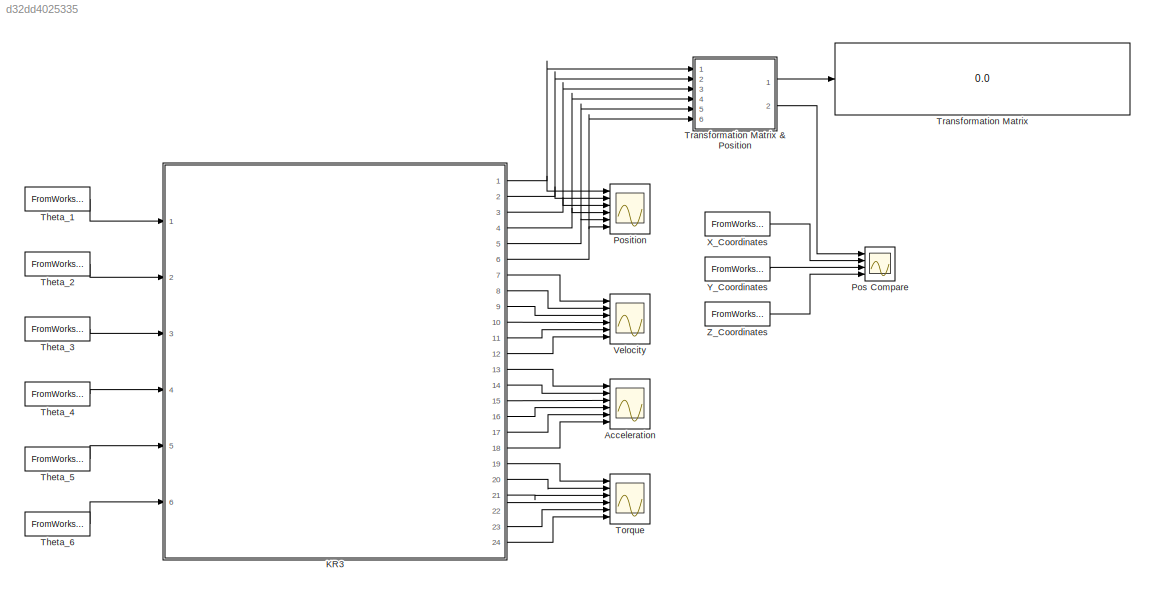
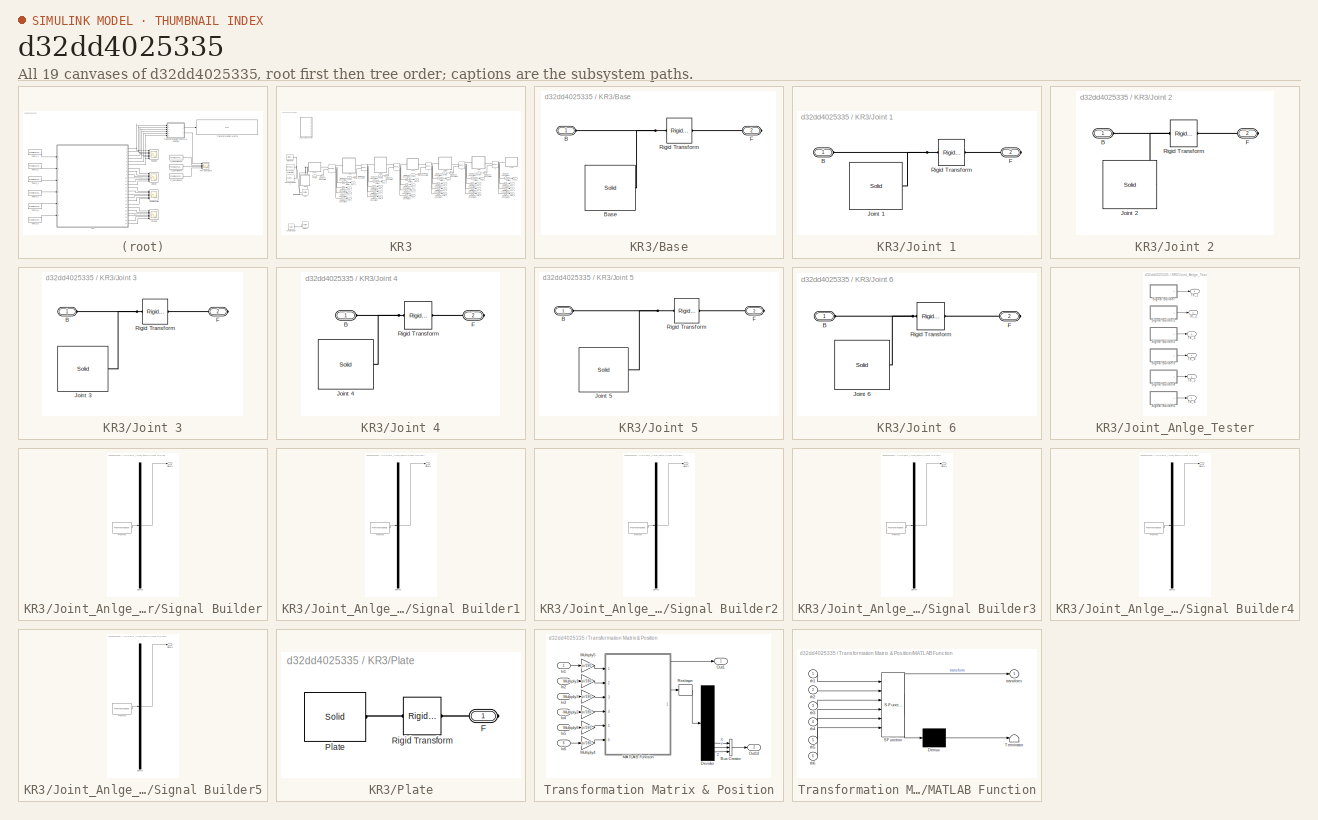
[diagram: thumbnail index - all 19 canvases of the model, root first then tree order]
MODEL slx_d32dd4025335
KIND model
CONFIG AbsTol = auto
CONFIG EnableMultiTasking = off
CONFIG FixedStep = TimeStamp
CONFIG MaxStep = auto
CONFIG MinStep = auto
CONFIG RelTol = 1e-3
CONFIG SampleTimeConstraint = Unconstrained
CONFIG Solver = ode14x
CONFIG SolverName = ode14x
CONFIG StartTime = 0.0
CONFIG StopTime = timeDuration
BLOCK [Scope] Acceleration
  Floating = off
  NumInputPorts = 6
  Ports = [6]
  ScopeSpecificationString = Simulink.scopes.TimeScopeBlockCfg('CurrentConfiguration', extmgr.ConfigurationSet(extmgr.Configuration('Core','General UI',true),extmgr.Configuration('Core','Source UI',true),extmgr.Configuration('Sources','WiredSimulink',true,'DataLoggingVariableName','ScopeData2'),extmgr.Configuration('Visuals','Time Domain',true,'SerializedDisplays',{struct('MinYLimReal','-0.90524','MaxYLimReal','1.28229','YLab...<+1616ch>
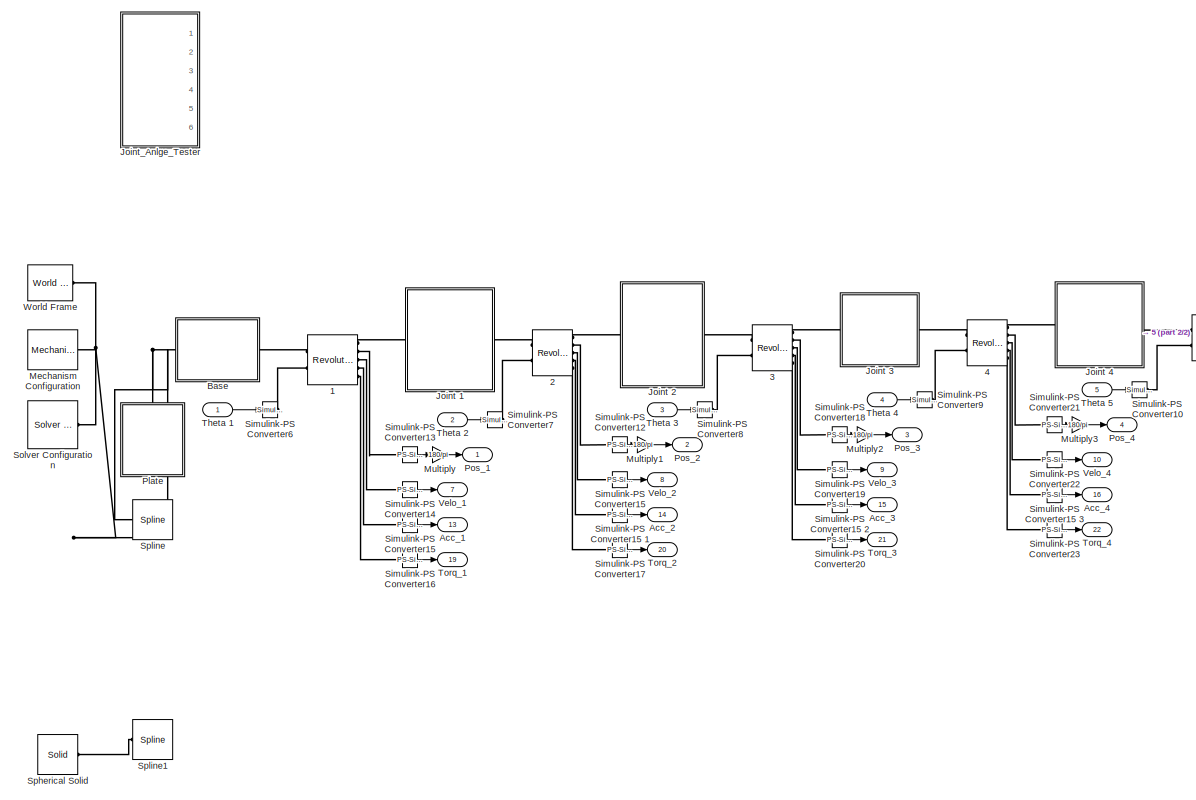
[diagram: KR3 - part 1/2, most of the canvas]
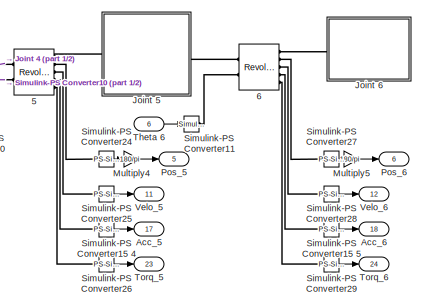
[diagram: KR3 - part 2/2, middle right region]
BLOCK [SubSystem] KR3
  Ports = [6, 24]
  RequestExecContextInheritance = off
BLOCK [Reference] KR3/1  REF=sm_lib/Joints/Revolute Joint
  Ports = [0, 0, 0, 0, 0, 2, 5]
  SourceBlock = sm_lib/Joints/Revolute Joint
  SourceProductBaseCode = MS
  SourceProductName = Simscape Multibody
  SourceType = Revolute Joint
BLOCK [Reference] KR3/2  REF=sm_lib/Joints/Revolute Joint
  Ports = [0, 0, 0, 0, 0, 2, 5]
  SourceBlock = sm_lib/Joints/Revolute Joint
  SourceProductBaseCode = MS
  SourceProductName = Simscape Multibody
  SourceType = Revolute Joint
BLOCK [Reference] KR3/3  REF=sm_lib/Joints/Revolute Joint
  Ports = [0, 0, 0, 0, 0, 2, 5]
  SourceBlock = sm_lib/Joints/Revolute Joint
  SourceProductBaseCode = MS
  SourceProductName = Simscape Multibody
  SourceType = Revolute Joint
BLOCK [Reference] KR3/4  REF=sm_lib/Joints/Revolute Joint
  Ports = [0, 0, 0, 0, 0, 2, 5]
  SourceBlock = sm_lib/Joints/Revolute Joint
  SourceProductBaseCode = MS
  SourceProductName = Simscape Multibody
  SourceType = Revolute Joint
BLOCK [Reference] KR3/5  REF=sm_lib/Joints/Revolute Joint
  Ports = [0, 0, 0, 0, 0, 2, 5]
  SourceBlock = sm_lib/Joints/Revolute Joint
  SourceProductBaseCode = MS
  SourceProductName = Simscape Multibody
  SourceType = Revolute Joint
BLOCK [Reference] KR3/6  REF=sm_lib/Joints/Revolute Joint
  Ports = [0, 0, 0, 0, 0, 2, 5]
  SourceBlock = sm_lib/Joints/Revolute Joint
  SourceProductBaseCode = MS
  SourceProductName = Simscape Multibody
  SourceType = Revolute Joint
BLOCK [Outport] KR3/Acc_1
  IconDisplay = Port number
  Port = 13
BLOCK [Outport] KR3/Acc_2
  IconDisplay = Port number
  Port = 14
BLOCK [Outport] KR3/Acc_3
  IconDisplay = Port number
  Port = 15
BLOCK [Outport] KR3/Acc_4
  IconDisplay = Port number
  Port = 16
BLOCK [Outport] KR3/Acc_5
  IconDisplay = Port number
  Port = 17
BLOCK [Outport] KR3/Acc_6
  IconDisplay = Port number
  Port = 18
BLOCK [SubSystem] KR3/Base
  Ports = [0, 0, 0, 0, 0, 1, 1]
  RequestExecContextInheritance = off
BLOCK [PMIOPort] KR3/Base/B
  Side = Left
BLOCK [Reference] KR3/Base/Base  REF=sm_lib/Body Elements/Solid
  Ports = [0, 0, 0, 0, 0, 0, 1]
  SourceBlock = sm_lib/Body Elements/Solid
  SourceProductBaseCode = MS
  SourceProductName = Simscape Multibody
  SourceType = File Solid
BLOCK [PMIOPort] KR3/Base/F
  Port = 2
  Side = Right
BLOCK [Reference] KR3/Base/Rigid Transform  REF=sm_lib/Frames and
Transforms/Rigid
Transform
  Ports = [0, 0, 0, 0, 0, 1, 1]
  SourceBlock = sm_lib/Frames and\nTransforms/Rigid\nTransform
  SourceProductBaseCode = MS
  SourceProductName = Simscape Multibody
  SourceType = Rigid\nTransform
BLOCK [SubSystem] KR3/Joint 1
  Ports = [0, 0, 0, 0, 0, 1, 1]
  RequestExecContextInheritance = off
BLOCK [PMIOPort] KR3/Joint 1/B
  Side = Left
BLOCK [PMIOPort] KR3/Joint 1/F
  Port = 2
  Side = Right
BLOCK [Reference] KR3/Joint 1/Joint 1  REF=sm_lib/Body Elements/Solid
  Ports = [0, 0, 0, 0, 0, 0, 1]
  SourceBlock = sm_lib/Body Elements/Solid
  SourceProductBaseCode = MS
  SourceProductName = Simscape Multibody
  SourceType = File Solid
BLOCK [Reference] KR3/Joint 1/Rigid Transform  REF=sm_lib/Frames and
Transforms/Rigid
Transform
  Ports = [0, 0, 0, 0, 0, 1, 1]
  SourceBlock = sm_lib/Frames and\nTransforms/Rigid\nTransform
  SourceProductBaseCode = MS
  SourceProductName = Simscape Multibody
  SourceType = Rigid\nTransform
BLOCK [SubSystem] KR3/Joint 2
  Ports = [0, 0, 0, 0, 0, 1, 1]
  RequestExecContextInheritance = off
BLOCK [PMIOPort] KR3/Joint 2/B
  Side = Left
BLOCK [PMIOPort] KR3/Joint 2/F
  Port = 2
  Side = Right
BLOCK [Reference] KR3/Joint 2/Joint 2  REF=sm_lib/Body Elements/Solid
  Ports = [0, 0, 0, 0, 0, 0, 1]
  SourceBlock = sm_lib/Body Elements/Solid
  SourceProductBaseCode = MS
  SourceProductName = Simscape Multibody
  SourceType = File Solid
BLOCK [Reference] KR3/Joint 2/Rigid Transform  REF=sm_lib/Frames and
Transforms/Rigid
Transform
  Ports = [0, 0, 0, 0, 0, 1, 1]
  SourceBlock = sm_lib/Frames and\nTransforms/Rigid\nTransform
  SourceProductBaseCode = MS
  SourceProductName = Simscape Multibody
  SourceType = Rigid\nTransform
BLOCK [SubSystem] KR3/Joint 3
  Ports = [0, 0, 0, 0, 0, 1, 1]
  RequestExecContextInheritance = off
BLOCK [PMIOPort] KR3/Joint 3/B
  Side = Left
BLOCK [PMIOPort] KR3/Joint 3/F
  Port = 2
  Side = Right
BLOCK [Reference] KR3/Joint 3/Joint 3  REF=sm_lib/Body Elements/Solid
  Ports = [0, 0, 0, 0, 0, 0, 1]
  SourceBlock = sm_lib/Body Elements/Solid
  SourceProductBaseCode = MS
  SourceProductName = Simscape Multibody
  SourceType = File Solid
BLOCK [Reference] KR3/Joint 3/Rigid Transform  REF=sm_lib/Frames and
Transforms/Rigid
Transform
  Ports = [0, 0, 0, 0, 0, 1, 1]
  SourceBlock = sm_lib/Frames and\nTransforms/Rigid\nTransform
  SourceProductBaseCode = MS
  SourceProductName = Simscape Multibody
  SourceType = Rigid\nTransform
BLOCK [SubSystem] KR3/Joint 4
  Ports = [0, 0, 0, 0, 0, 1, 1]
  RequestExecContextInheritance = off
BLOCK [PMIOPort] KR3/Joint 4/B
  Side = Left
BLOCK [PMIOPort] KR3/Joint 4/F
  Port = 2
  Side = Right
BLOCK [Reference] KR3/Joint 4/Joint 4  REF=sm_lib/Body Elements/Solid
  Ports = [0, 0, 0, 0, 0, 0, 1]
  SourceBlock = sm_lib/Body Elements/Solid
  SourceProductBaseCode = MS
  SourceProductName = Simscape Multibody
  SourceType = File Solid
BLOCK [Reference] KR3/Joint 4/Rigid Transform  REF=sm_lib/Frames and
Transforms/Rigid
Transform
  Ports = [0, 0, 0, 0, 0, 1, 1]
  SourceBlock = sm_lib/Frames and\nTransforms/Rigid\nTransform
  SourceProductBaseCode = MS
  SourceProductName = Simscape Multibody
  SourceType = Rigid\nTransform
BLOCK [SubSystem] KR3/Joint 5
  Ports = [0, 0, 0, 0, 0, 1, 1]
  RequestExecContextInheritance = off
BLOCK [PMIOPort] KR3/Joint 5/B
  Side = Left
BLOCK [PMIOPort] KR3/Joint 5/F
  Port = 2
  Side = Right
BLOCK [Reference] KR3/Joint 5/Joint 5  REF=sm_lib/Body Elements/Solid
  Ports = [0, 0, 0, 0, 0, 0, 1]
  SourceBlock = sm_lib/Body Elements/Solid
  SourceProductBaseCode = MS
  SourceProductName = Simscape Multibody
  SourceType = File Solid
BLOCK [Reference] KR3/Joint 5/Rigid Transform  REF=sm_lib/Frames and
Transforms/Rigid
Transform
  Ports = [0, 0, 0, 0, 0, 1, 1]
  SourceBlock = sm_lib/Frames and\nTransforms/Rigid\nTransform
  SourceProductBaseCode = MS
  SourceProductName = Simscape Multibody
  SourceType = Rigid\nTransform
BLOCK [SubSystem] KR3/Joint 6
  Ports = [0, 0, 0, 0, 0, 1, 1]
  RequestExecContextInheritance = off
BLOCK [PMIOPort] KR3/Joint 6/B
  Side = Left
BLOCK [PMIOPort] KR3/Joint 6/F
  Port = 2
  Side = Right
BLOCK [Reference] KR3/Joint 6/Joint 6  REF=sm_lib/Body Elements/Solid
  Ports = [0, 0, 0, 0, 0, 0, 1]
  SourceBlock = sm_lib/Body Elements/Solid
  SourceProductBaseCode = MS
  SourceProductName = Simscape Multibody
  SourceType = File Solid
BLOCK [Reference] KR3/Joint 6/Rigid Transform  REF=sm_lib/Frames and
Transforms/Rigid
Transform
  Ports = [0, 0, 0, 0, 0, 1, 1]
  SourceBlock = sm_lib/Frames and\nTransforms/Rigid\nTransform
  SourceProductBaseCode = MS
  SourceProductName = Simscape Multibody
  SourceType = Rigid\nTransform
BLOCK [SubSystem] KR3/Joint_Anlge_Tester
  Commented = on
  Ports = [0, 6]
  RequestExecContextInheritance = off
BLOCK [SubSystem] KR3/Joint_Anlge_Tester/Signal Builder
  ClipboardFcn = sigbuilder_block('clipboard');
  CloseFcn = sigbuilder_block('close');
  ContinueFcn = sigbuilder_block('continue');
  CopyFcn = sigbuilder_block('copy');
  DeleteFcn = sigbuilder_block('delete');
  LoadFcn = sigbuilder_block('load');
  MaskHideContents = on
  ModelCloseFcn = sigbuilder_block('modelClose');
  NameChangeFcn = sigbuilder_block('namechange');
  OpenFcn = sigbuilder_block('open',[6 0 1428 711.75 ]);
  PauseFcn = sigbuilder_block('pause');
  Ports = [0, 1]
  PreSaveFcn = sigbuilder_block('preSave');
  RequestExecContextInheritance = off
  StartFcn = sigbuilder_block('start');
  StopFcn = sigbuilder_block('stop');
  Tag = STV Subsys
BLOCK [Demux] KR3/Joint_Anlge_Tester/Signal Builder/Demux
  Outputs = 1
  Ports = [1, 1]
  Tag = STV Demux
BLOCK [FromWorkspace] KR3/Joint_Anlge_Tester/Signal Builder/FromWs
  SampleTime = 0
  Tag = STV FromWs
  VariableName = tuvar
  ZeroCross = on
BLOCK [Outport] KR3/Joint_Anlge_Tester/Signal Builder/Signal 1
  IconDisplay = Port number
  Tag = STV Outport
BLOCK [SubSystem] KR3/Joint_Anlge_Tester/Signal Builder1
  ClipboardFcn = sigbuilder_block('clipboard');
  CloseFcn = sigbuilder_block('close');
  ContinueFcn = sigbuilder_block('continue');
  CopyFcn = sigbuilder_block('copy');
  DeleteFcn = sigbuilder_block('delete');
  LoadFcn = sigbuilder_block('load');
  MaskHideContents = on
  ModelCloseFcn = sigbuilder_block('modelClose');
  NameChangeFcn = sigbuilder_block('namechange');
  OpenFcn = sigbuilder_block('open',[437.6 199.2 550.4 400 ]);
  PauseFcn = sigbuilder_block('pause');
  Ports = [0, 1]
  PreSaveFcn = sigbuilder_block('preSave');
  RequestExecContextInheritance = off
  StartFcn = sigbuilder_block('start');
  StopFcn = sigbuilder_block('stop');
  Tag = STV Subsys
BLOCK [Demux] KR3/Joint_Anlge_Tester/Signal Builder1/Demux
  Outputs = 1
  Ports = [1, 1]
  Tag = STV Demux
BLOCK [FromWorkspace] KR3/Joint_Anlge_Tester/Signal Builder1/FromWs
  SampleTime = 0
  Tag = STV FromWs
  VariableName = tuvar
  ZeroCross = on
BLOCK [Outport] KR3/Joint_Anlge_Tester/Signal Builder1/Signal 1
  IconDisplay = Port number
  Tag = STV Outport
BLOCK [SubSystem] KR3/Joint_Anlge_Tester/Signal Builder2
  ClipboardFcn = sigbuilder_block('clipboard');
  CloseFcn = sigbuilder_block('close');
  ContinueFcn = sigbuilder_block('continue');
  CopyFcn = sigbuilder_block('copy');
  DeleteFcn = sigbuilder_block('delete');
  LoadFcn = sigbuilder_block('load');
  MaskHideContents = on
  ModelCloseFcn = sigbuilder_block('modelClose');
  NameChangeFcn = sigbuilder_block('namechange');
  OpenFcn = sigbuilder_block('open',[437.6 199.2 550.4 400 ]);
  PauseFcn = sigbuilder_block('pause');
  Ports = [0, 1]
  PreSaveFcn = sigbuilder_block('preSave');
  RequestExecContextInheritance = off
  StartFcn = sigbuilder_block('start');
  StopFcn = sigbuilder_block('stop');
  Tag = STV Subsys
BLOCK [Demux] KR3/Joint_Anlge_Tester/Signal Builder2/Demux
  Outputs = 1
  Ports = [1, 1]
  Tag = STV Demux
BLOCK [FromWorkspace] KR3/Joint_Anlge_Tester/Signal Builder2/FromWs
  SampleTime = 0
  Tag = STV FromWs
  VariableName = tuvar
  ZeroCross = on
BLOCK [Outport] KR3/Joint_Anlge_Tester/Signal Builder2/Signal 1
  IconDisplay = Port number
  Tag = STV Outport
BLOCK [SubSystem] KR3/Joint_Anlge_Tester/Signal Builder3
  ClipboardFcn = sigbuilder_block('clipboard');
  CloseFcn = sigbuilder_block('close');
  ContinueFcn = sigbuilder_block('continue');
  CopyFcn = sigbuilder_block('copy');
  DeleteFcn = sigbuilder_block('delete');
  LoadFcn = sigbuilder_block('load');
  MaskHideContents = on
  ModelCloseFcn = sigbuilder_block('modelClose');
  NameChangeFcn = sigbuilder_block('namechange');
  OpenFcn = sigbuilder_block('open',[437.6 199.2 550.4 400 ]);
  PauseFcn = sigbuilder_block('pause');
  Ports = [0, 1]
  PreSaveFcn = sigbuilder_block('preSave');
  RequestExecContextInheritance = off
  StartFcn = sigbuilder_block('start');
  StopFcn = sigbuilder_block('stop');
  Tag = STV Subsys
BLOCK [Demux] KR3/Joint_Anlge_Tester/Signal Builder3/Demux
  Outputs = 1
  Ports = [1, 1]
  Tag = STV Demux
BLOCK [FromWorkspace] KR3/Joint_Anlge_Tester/Signal Builder3/FromWs
  SampleTime = 0
  Tag = STV FromWs
  VariableName = tuvar
  ZeroCross = on
BLOCK [Outport] KR3/Joint_Anlge_Tester/Signal Builder3/Signal 1
  IconDisplay = Port number
  Tag = STV Outport
BLOCK [SubSystem] KR3/Joint_Anlge_Tester/Signal Builder4
  ClipboardFcn = sigbuilder_block('clipboard');
  CloseFcn = sigbuilder_block('close');
  ContinueFcn = sigbuilder_block('continue');
  CopyFcn = sigbuilder_block('copy');
  DeleteFcn = sigbuilder_block('delete');
  LoadFcn = sigbuilder_block('load');
  MaskHideContents = on
  ModelCloseFcn = sigbuilder_block('modelClose');
  NameChangeFcn = sigbuilder_block('namechange');
  OpenFcn = sigbuilder_block('open',[437.6 199.2 550.4 400 ]);
  PauseFcn = sigbuilder_block('pause');
  Ports = [0, 1]
  PreSaveFcn = sigbuilder_block('preSave');
  RequestExecContextInheritance = off
  StartFcn = sigbuilder_block('start');
  StopFcn = sigbuilder_block('stop');
  Tag = STV Subsys
BLOCK [Demux] KR3/Joint_Anlge_Tester/Signal Builder4/Demux
  Outputs = 1
  Ports = [1, 1]
  Tag = STV Demux
BLOCK [FromWorkspace] KR3/Joint_Anlge_Tester/Signal Builder4/FromWs
  SampleTime = 0
  Tag = STV FromWs
  VariableName = tuvar
  ZeroCross = on
BLOCK [Outport] KR3/Joint_Anlge_Tester/Signal Builder4/Signal 1
  IconDisplay = Port number
  Tag = STV Outport
BLOCK [SubSystem] KR3/Joint_Anlge_Tester/Signal Builder5
  ClipboardFcn = sigbuilder_block('clipboard');
  CloseFcn = sigbuilder_block('close');
  ContinueFcn = sigbuilder_block('continue');
  CopyFcn = sigbuilder_block('copy');
  DeleteFcn = sigbuilder_block('delete');
  LoadFcn = sigbuilder_block('load');
  MaskHideContents = on
  ModelCloseFcn = sigbuilder_block('modelClose');
  NameChangeFcn = sigbuilder_block('namechange');
  OpenFcn = sigbuilder_block('open',[437.6 199.2 550.4 400 ]);
  PauseFcn = sigbuilder_block('pause');
  Ports = [0, 1]
  PreSaveFcn = sigbuilder_block('preSave');
  RequestExecContextInheritance = off
  StartFcn = sigbuilder_block('start');
  StopFcn = sigbuilder_block('stop');
  Tag = STV Subsys
BLOCK [Demux] KR3/Joint_Anlge_Tester/Signal Builder5/Demux
  Outputs = 1
  Ports = [1, 1]
  Tag = STV Demux
BLOCK [FromWorkspace] KR3/Joint_Anlge_Tester/Signal Builder5/FromWs
  SampleTime = 0
  Tag = STV FromWs
  VariableName = tuvar
  ZeroCross = on
BLOCK [Outport] KR3/Joint_Anlge_Tester/Signal Builder5/Signal 1
  IconDisplay = Port number
  Tag = STV Outport
BLOCK [Outport] KR3/Joint_Anlge_Tester/Th_1
  IconDisplay = Port number
BLOCK [Outport] KR3/Joint_Anlge_Tester/Th_2
  IconDisplay = Port number
  Port = 2
BLOCK [Outport] KR3/Joint_Anlge_Tester/Th_3
  IconDisplay = Port number
  Port = 3
BLOCK [Outport] KR3/Joint_Anlge_Tester/Th_4
  IconDisplay = Port number
  Port = 4
BLOCK [Outport] KR3/Joint_Anlge_Tester/Th_5
  IconDisplay = Port number
  Port = 5
BLOCK [Outport] KR3/Joint_Anlge_Tester/Th_6
  IconDisplay = Port number
  Port = 6
BLOCK [Reference] KR3/Mechanism Configuration  REF=sm_lib/Utilities/Mechanism
Configuration
  Ports = [0, 0, 0, 0, 0, 0, 1]
  SourceBlock = sm_lib/Utilities/Mechanism\nConfiguration
  SourceProductBaseCode = MS
  SourceProductName = Simscape Multibody
  SourceType = Mechanism\nConfiguration
BLOCK [Gain] KR3/Multiply
  Gain = 180/pi
  OutDataTypeStr = Inherit: Inherit via internal rule
  ParamDataTypeStr = Inherit: Inherit via internal rule
  SaturateOnIntegerOverflow = off
BLOCK [Gain] KR3/Multiply1
  Gain = 180/pi
  OutDataTypeStr = Inherit: Inherit via internal rule
  ParamDataTypeStr = Inherit: Inherit via internal rule
  SaturateOnIntegerOverflow = off
BLOCK [Gain] KR3/Multiply2
  Gain = 180/pi
  OutDataTypeStr = Inherit: Inherit via internal rule
  ParamDataTypeStr = Inherit: Inherit via internal rule
  SaturateOnIntegerOverflow = off
BLOCK [Gain] KR3/Multiply3
  Gain = 180/pi
  OutDataTypeStr = Inherit: Inherit via internal rule
  ParamDataTypeStr = Inherit: Inherit via internal rule
  SaturateOnIntegerOverflow = off
BLOCK [Gain] KR3/Multiply4
  Gain = 180/pi
  OutDataTypeStr = Inherit: Inherit via internal rule
  ParamDataTypeStr = Inherit: Inherit via internal rule
  SaturateOnIntegerOverflow = off
BLOCK [Gain] KR3/Multiply5
  Gain = 180/pi
  OutDataTypeStr = Inherit: Inherit via internal rule
  ParamDataTypeStr = Inherit: Inherit via internal rule
  SaturateOnIntegerOverflow = off
BLOCK [SubSystem] KR3/Plate
  Ports = [0, 0, 0, 0, 0, 0, 1]
  RequestExecContextInheritance = off
BLOCK [PMIOPort] KR3/Plate/F
  Side = Right
BLOCK [Reference] KR3/Plate/Plate  REF=sm_lib/Body Elements/Solid
  Ports = [0, 0, 0, 0, 0, 0, 1]
  SourceBlock = sm_lib/Body Elements/Solid
  SourceProductBaseCode = MS
  SourceProductName = Simscape Multibody
  SourceType = File Solid
BLOCK [Reference] KR3/Plate/Rigid Transform  REF=sm_lib/Frames and
Transforms/Rigid
Transform
  Ports = [0, 0, 0, 0, 0, 1, 1]
  SourceBlock = sm_lib/Frames and\nTransforms/Rigid\nTransform
  SourceProductBaseCode = MS
  SourceProductName = Simscape Multibody
  SourceType = Rigid\nTransform
BLOCK [Outport] KR3/Pos_1
  IconDisplay = Signal name
BLOCK [Outport] KR3/Pos_2
  IconDisplay = Port number
  Port = 2
BLOCK [Outport] KR3/Pos_3
  IconDisplay = Port number
  Port = 3
BLOCK [Outport] KR3/Pos_4
  IconDisplay = Port number
  Port = 4
BLOCK [Outport] KR3/Pos_5
  IconDisplay = Port number
  Port = 5
BLOCK [Outport] KR3/Pos_6
  IconDisplay = Port number
  Port = 6
BLOCK [Reference] KR3/Simulink-PS Converter10  REF=nesl_utility/Simulink-PS
Converter
  Ports = [1, 0, 0, 0, 0, 0, 1]
  SourceBlock = nesl_utility/Simulink-PS\nConverter
  SourceProductBaseCode = SS
  SourceProductName = Simscape
  SourceType = Simulink-PS\nConverter
BLOCK [Reference] KR3/Simulink-PS Converter11  REF=nesl_utility/Simulink-PS
Converter
  Ports = [1, 0, 0, 0, 0, 0, 1]
  SourceBlock = nesl_utility/Simulink-PS\nConverter
  SourceProductBaseCode = SS
  SourceProductName = Simscape
  SourceType = Simulink-PS\nConverter
BLOCK [Reference] KR3/Simulink-PS Converter12  REF=nesl_utility/PS-Simulink
Converter
  Ports = [0, 1, 0, 0, 0, 1]
  SourceBlock = nesl_utility/PS-Simulink\nConverter
  SourceProductBaseCode = SS
  SourceProductName = Simscape
  SourceType = PS-Simulink\nConverter
BLOCK [Reference] KR3/Simulink-PS Converter13  REF=nesl_utility/PS-Simulink
Converter
  Ports = [0, 1, 0, 0, 0, 1]
  SourceBlock = nesl_utility/PS-Simulink\nConverter
  SourceProductBaseCode = SS
  SourceProductName = Simscape
  SourceType = PS-Simulink\nConverter
BLOCK [Reference] KR3/Simulink-PS Converter14  REF=nesl_utility/PS-Simulink
Converter
  Ports = [0, 1, 0, 0, 0, 1]
  SourceBlock = nesl_utility/PS-Simulink\nConverter
  SourceProductBaseCode = SS
  SourceProductName = Simscape
  SourceType = PS-Simulink\nConverter
BLOCK [Reference] KR3/Simulink-PS Converter15  REF=nesl_utility/PS-Simulink
Converter
  Ports = [0, 1, 0, 0, 0, 1]
  SourceBlock = nesl_utility/PS-Simulink\nConverter
  SourceProductBaseCode = SS
  SourceProductName = Simscape
  SourceType = PS-Simulink\nConverter
BLOCK [Reference] KR3/Simulink-PS Converter15   REF=nesl_utility/PS-Simulink
Converter
  Ports = [0, 1, 0, 0, 0, 1]
  SourceBlock = nesl_utility/PS-Simulink\nConverter
  SourceProductBaseCode = SS
  SourceProductName = Simscape
  SourceType = PS-Simulink\nConverter
BLOCK [Reference] KR3/Simulink-PS Converter15 1  REF=nesl_utility/PS-Simulink
Converter
  Ports = [0, 1, 0, 0, 0, 1]
  SourceBlock = nesl_utility/PS-Simulink\nConverter
  SourceProductBaseCode = SS
  SourceProductName = Simscape
  SourceType = PS-Simulink\nConverter
BLOCK [Reference] KR3/Simulink-PS Converter15 2  REF=nesl_utility/PS-Simulink
Converter
  Ports = [0, 1, 0, 0, 0, 1]
  SourceBlock = nesl_utility/PS-Simulink\nConverter
  SourceProductBaseCode = SS
  SourceProductName = Simscape
  SourceType = PS-Simulink\nConverter
BLOCK [Reference] KR3/Simulink-PS Converter15 3  REF=nesl_utility/PS-Simulink
Converter
  Ports = [0, 1, 0, 0, 0, 1]
  SourceBlock = nesl_utility/PS-Simulink\nConverter
  SourceProductBaseCode = SS
  SourceProductName = Simscape
  SourceType = PS-Simulink\nConverter
BLOCK [Reference] KR3/Simulink-PS Converter15 4  REF=nesl_utility/PS-Simulink
Converter
  Ports = [0, 1, 0, 0, 0, 1]
  SourceBlock = nesl_utility/PS-Simulink\nConverter
  SourceProductBaseCode = SS
  SourceProductName = Simscape
  SourceType = PS-Simulink\nConverter
BLOCK [Reference] KR3/Simulink-PS Converter15 5  REF=nesl_utility/PS-Simulink
Converter
  Ports = [0, 1, 0, 0, 0, 1]
  SourceBlock = nesl_utility/PS-Simulink\nConverter
  SourceProductBaseCode = SS
  SourceProductName = Simscape
  SourceType = PS-Simulink\nConverter
BLOCK [Reference] KR3/Simulink-PS Converter16  REF=nesl_utility/PS-Simulink
Converter
  Ports = [0, 1, 0, 0, 0, 1]
  SourceBlock = nesl_utility/PS-Simulink\nConverter
  SourceProductBaseCode = SS
  SourceProductName = Simscape
  SourceType = PS-Simulink\nConverter
BLOCK [Reference] KR3/Simulink-PS Converter17  REF=nesl_utility/PS-Simulink
Converter
  Ports = [0, 1, 0, 0, 0, 1]
  SourceBlock = nesl_utility/PS-Simulink\nConverter
  SourceProductBaseCode = SS
  SourceProductName = Simscape
  SourceType = PS-Simulink\nConverter
BLOCK [Reference] KR3/Simulink-PS Converter18  REF=nesl_utility/PS-Simulink
Converter
  Ports = [0, 1, 0, 0, 0, 1]
  SourceBlock = nesl_utility/PS-Simulink\nConverter
  SourceProductBaseCode = SS
  SourceProductName = Simscape
  SourceType = PS-Simulink\nConverter
BLOCK [Reference] KR3/Simulink-PS Converter19  REF=nesl_utility/PS-Simulink
Converter
  Ports = [0, 1, 0, 0, 0, 1]
  SourceBlock = nesl_utility/PS-Simulink\nConverter
  SourceProductBaseCode = SS
  SourceProductName = Simscape
  SourceType = PS-Simulink\nConverter
BLOCK [Reference] KR3/Simulink-PS Converter20  REF=nesl_utility/PS-Simulink
Converter
  Ports = [0, 1, 0, 0, 0, 1]
  SourceBlock = nesl_utility/PS-Simulink\nConverter
  SourceProductBaseCode = SS
  SourceProductName = Simscape
  SourceType = PS-Simulink\nConverter
BLOCK [Reference] KR3/Simulink-PS Converter21  REF=nesl_utility/PS-Simulink
Converter
  Ports = [0, 1, 0, 0, 0, 1]
  SourceBlock = nesl_utility/PS-Simulink\nConverter
  SourceProductBaseCode = SS
  SourceProductName = Simscape
  SourceType = PS-Simulink\nConverter
BLOCK [Reference] KR3/Simulink-PS Converter22  REF=nesl_utility/PS-Simulink
Converter
  Ports = [0, 1, 0, 0, 0, 1]
  SourceBlock = nesl_utility/PS-Simulink\nConverter
  SourceProductBaseCode = SS
  SourceProductName = Simscape
  SourceType = PS-Simulink\nConverter
BLOCK [Reference] KR3/Simulink-PS Converter23  REF=nesl_utility/PS-Simulink
Converter
  Ports = [0, 1, 0, 0, 0, 1]
  SourceBlock = nesl_utility/PS-Simulink\nConverter
  SourceProductBaseCode = SS
  SourceProductName = Simscape
  SourceType = PS-Simulink\nConverter
BLOCK [Reference] KR3/Simulink-PS Converter24  REF=nesl_utility/PS-Simulink
Converter
  Ports = [0, 1, 0, 0, 0, 1]
  SourceBlock = nesl_utility/PS-Simulink\nConverter
  SourceProductBaseCode = SS
  SourceProductName = Simscape
  SourceType = PS-Simulink\nConverter
BLOCK [Reference] KR3/Simulink-PS Converter25  REF=nesl_utility/PS-Simulink
Converter
  Ports = [0, 1, 0, 0, 0, 1]
  SourceBlock = nesl_utility/PS-Simulink\nConverter
  SourceProductBaseCode = SS
  SourceProductName = Simscape
  SourceType = PS-Simulink\nConverter
BLOCK [Reference] KR3/Simulink-PS Converter26  REF=nesl_utility/PS-Simulink
Converter
  Ports = [0, 1, 0, 0, 0, 1]
  SourceBlock = nesl_utility/PS-Simulink\nConverter
  SourceProductBaseCode = SS
  SourceProductName = Simscape
  SourceType = PS-Simulink\nConverter
BLOCK [Reference] KR3/Simulink-PS Converter27  REF=nesl_utility/PS-Simulink
Converter
  Ports = [0, 1, 0, 0, 0, 1]
  SourceBlock = nesl_utility/PS-Simulink\nConverter
  SourceProductBaseCode = SS
  SourceProductName = Simscape
  SourceType = PS-Simulink\nConverter
BLOCK [Reference] KR3/Simulink-PS Converter28  REF=nesl_utility/PS-Simulink
Converter
  Ports = [0, 1, 0, 0, 0, 1]
  SourceBlock = nesl_utility/PS-Simulink\nConverter
  SourceProductBaseCode = SS
  SourceProductName = Simscape
  SourceType = PS-Simulink\nConverter
BLOCK [Reference] KR3/Simulink-PS Converter29  REF=nesl_utility/PS-Simulink
Converter
  Ports = [0, 1, 0, 0, 0, 1]
  SourceBlock = nesl_utility/PS-Simulink\nConverter
  SourceProductBaseCode = SS
  SourceProductName = Simscape
  SourceType = PS-Simulink\nConverter
BLOCK [Reference] KR3/Simulink-PS Converter6  REF=nesl_utility/Simulink-PS
Converter
  Ports = [1, 0, 0, 0, 0, 0, 1]
  SourceBlock = nesl_utility/Simulink-PS\nConverter
  SourceProductBaseCode = SS
  SourceProductName = Simscape
  SourceType = Simulink-PS\nConverter
BLOCK [Reference] KR3/Simulink-PS Converter7  REF=nesl_utility/Simulink-PS
Converter
  Ports = [1, 0, 0, 0, 0, 0, 1]
  SourceBlock = nesl_utility/Simulink-PS\nConverter
  SourceProductBaseCode = SS
  SourceProductName = Simscape
  SourceType = Simulink-PS\nConverter
BLOCK [Reference] KR3/Simulink-PS Converter8  REF=nesl_utility/Simulink-PS
Converter
  Ports = [1, 0, 0, 0, 0, 0, 1]
  SourceBlock = nesl_utility/Simulink-PS\nConverter
  SourceProductBaseCode = SS
  SourceProductName = Simscape
  SourceType = Simulink-PS\nConverter
BLOCK [Reference] KR3/Simulink-PS Converter9  REF=nesl_utility/Simulink-PS
Converter
  Ports = [1, 0, 0, 0, 0, 0, 1]
  SourceBlock = nesl_utility/Simulink-PS\nConverter
  SourceProductBaseCode = SS
  SourceProductName = Simscape
  SourceType = Simulink-PS\nConverter
BLOCK [Reference] KR3/Solver Configuration  REF=nesl_utility/Solver
Configuration
  Ports = [0, 0, 0, 0, 0, 0, 1]
  SourceBlock = nesl_utility/Solver\nConfiguration
  SourceProductBaseCode = SS
  SourceProductName = Simscape
  SourceType = Solver\nConfiguration
BLOCK [Reference] KR3/Spherical Solid  REF=sm_lib/Body Elements/Solid
  Commented = on
  Ports = [0, 0, 0, 0, 0, 1, 1]
  SourceBlock = sm_lib/Body Elements/Solid
  SourceProductBaseCode = MS
  SourceProductName = Simscape Multibody
  SourceType = Spherical Solid
BLOCK [Reference] KR3/Spline  REF=sm_lib/Curves and Surfaces/Spline
  Ports = [0, 0, 0, 0, 0, 1, 1]
  SourceBlock = sm_lib/Curves and Surfaces/Spline
  SourceProductBaseCode = MS
  SourceProductName = Simscape Multibody
  SourceType = Spline
BLOCK [Reference] KR3/Spline1  REF=sm_lib/Curves and Surfaces/Spline
  Commented = on
  Ports = [0, 0, 0, 0, 0, 1, 1]
  SourceBlock = sm_lib/Curves and Surfaces/Spline
  SourceProductBaseCode = MS
  SourceProductName = Simscape Multibody
  SourceType = Spline
BLOCK [Inport] KR3/Theta 1
  IconDisplay = Port number
BLOCK [Inport] KR3/Theta 2
  IconDisplay = Port number
  Port = 2
BLOCK [Inport] KR3/Theta 3
  IconDisplay = Port number
  Port = 3
BLOCK [Inport] KR3/Theta 4
  IconDisplay = Port number
  Port = 4
BLOCK [Inport] KR3/Theta 5
  IconDisplay = Port number
  Port = 5
BLOCK [Inport] KR3/Theta 6
  IconDisplay = Port number
  Port = 6
BLOCK [Outport] KR3/Torq_1
  IconDisplay = Port number
  Port = 19
BLOCK [Outport] KR3/Torq_2
  IconDisplay = Port number
  Port = 20
BLOCK [Outport] KR3/Torq_3
  IconDisplay = Port number
  Port = 21
BLOCK [Outport] KR3/Torq_4
  IconDisplay = Port number
  Port = 22
BLOCK [Outport] KR3/Torq_5
  IconDisplay = Port number
  Port = 23
BLOCK [Outport] KR3/Torq_6
  IconDisplay = Port number
  Port = 24
BLOCK [Outport] KR3/Velo_1
  IconDisplay = Port number
  Port = 7
BLOCK [Outport] KR3/Velo_2
  IconDisplay = Port number
  Port = 8
BLOCK [Outport] KR3/Velo_3
  IconDisplay = Port number
  Port = 9
BLOCK [Outport] KR3/Velo_4
  IconDisplay = Port number
  Port = 10
BLOCK [Outport] KR3/Velo_5
  IconDisplay = Port number
  Port = 11
BLOCK [Outport] KR3/Velo_6
  IconDisplay = Port number
  Port = 12
BLOCK [Reference] KR3/World Frame  REF=sm_lib/Frames and
Transforms/World Frame
  Ports = [0, 0, 0, 0, 0, 0, 1]
  SourceBlock = sm_lib/Frames and\nTransforms/World Frame
  SourceProductBaseCode = MS
  SourceProductName = Simscape Multibody
  SourceType = World Frame
BLOCK [Scope] Pos Compare
  Floating = off
  NumInputPorts = 4
  Ports = [4]
  ScopeSpecificationString = Simulink.scopes.TimeScopeBlockCfg('CurrentConfiguration', extmgr.ConfigurationSet(extmgr.Configuration('Core','General UI',true),extmgr.Configuration('Core','Source UI',true),extmgr.Configuration('Sources','WiredSimulink',true,'DataLoggingVariableName','ScopeData2'),extmgr.Configuration('Visuals','Time Domain',true,'SerializedDisplays',{struct('MinYLimReal','-0.16448','MaxYLimReal','0.52397','YLab...<+1727ch>
BLOCK [Scope] Position
  Floating = off
  NumInputPorts = 6
  Ports = [6]
  ScopeSpecificationString = Simulink.scopes.TimeScopeBlockCfg('CurrentConfiguration', extmgr.ConfigurationSet(extmgr.Configuration('Core','General UI',true),extmgr.Configuration('Core','Source UI',true),extmgr.Configuration('Sources','WiredSimulink',true,'DataLoggingVariableName','ScopeData1'),extmgr.Configuration('Visuals','Time Domain',true,'SerializedDisplays',{struct('MinYLimReal','-273.94453','MaxYLimReal','503.41323','...<+1643ch>
BLOCK [FromWorkspace] Theta_1
  OutputAfterFinalValue = Holding final value
  VariableName = Th1
BLOCK [FromWorkspace] Theta_2
  OutputAfterFinalValue = Holding final value
  VariableName = Th2
BLOCK [FromWorkspace] Theta_3
  OutputAfterFinalValue = Holding final value
  VariableName = Th3
BLOCK [FromWorkspace] Theta_4
  OutputAfterFinalValue = Holding final value
  VariableName = Th4
BLOCK [FromWorkspace] Theta_5
  OutputAfterFinalValue = Holding final value
  VariableName = Th5
BLOCK [FromWorkspace] Theta_6
  OutputAfterFinalValue = Holding final value
  VariableName = Th6
BLOCK [Scope] Torque
  Floating = off
  NumInputPorts = 6
  Ports = [6]
  ScopeSpecificationString = Simulink.scopes.TimeScopeBlockCfg('CurrentConfiguration', extmgr.ConfigurationSet(extmgr.Configuration('Core','General UI',true),extmgr.Configuration('Core','Source UI',true),extmgr.Configuration('Sources','WiredSimulink',true,'DataLoggingVariableName','ScopeData3'),extmgr.Configuration('Visuals','Time Domain',true,'SerializedDisplays',{struct('MinYLimReal','-3.04321','MaxYLimReal','25.40362','YLa...<+1620ch>
BLOCK [Display] Transformation Matrix
  Decimation = 1
  Ports = [1]
BLOCK [SubSystem] Transformation Matrix & Position
  Ports = [6, 2]
  RequestExecContextInheritance = off
BLOCK [BusCreator] Transformation Matrix & Position/Bus Creator
  DisplayOption = bar
  InheritFromInputs = on
  Inputs = 3
  Ports = [3, 1]
BLOCK [Demux] Transformation Matrix & Position/Devider
  Outputs = 16
  Ports = [1, 16]
BLOCK [Inport] Transformation Matrix & Position/In1
  IconDisplay = Port number
BLOCK [Inport] Transformation Matrix & Position/In2
  IconDisplay = Port number
  Port = 2
BLOCK [Inport] Transformation Matrix & Position/In3
  IconDisplay = Port number
  Port = 3
BLOCK [Inport] Transformation Matrix & Position/In4
  IconDisplay = Port number
  Port = 4
BLOCK [Inport] Transformation Matrix & Position/In5
  IconDisplay = Port number
  Port = 5
BLOCK [Inport] Transformation Matrix & Position/In6
  IconDisplay = Port number
  Port = 6
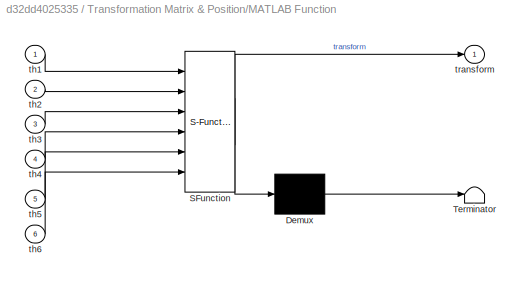
BLOCK [SubSystem] Transformation Matrix & Position/MATLAB Function
  ErrorFcn = Stateflow.Translate.translate
  PermitHierarchicalResolution = ExplicitOnly
  Ports = [6, 1]
  RequestExecContextInheritance = off
  SFBlockType = MATLAB Function
  TreatAsAtomicUnit = on
BLOCK [Demux] Transformation Matrix & Position/MATLAB Function/ Demux 
  Outputs = 1
  Ports = [1, 1]
BLOCK [S-Function] Transformation Matrix & Position/MATLAB Function/ SFunction 
  EnableBusSupport = on
  FunctionName = sf_sfun
  PortCounts = [6 2]
  Ports = [6, 2]
  SFcnIsStateOwnerBlock = off
  SFunctionDeploymentMode = off
  Tag = Stateflow S-Function Simscape_Model_2018b 5
BLOCK [Terminator] Transformation Matrix & Position/MATLAB Function/ Terminator 
BLOCK [Inport] Transformation Matrix & Position/MATLAB Function/th1
  IconDisplay = Port number
BLOCK [Inport] Transformation Matrix & Position/MATLAB Function/th2
  IconDisplay = Port number
  Port = 2
BLOCK [Inport] Transformation Matrix & Position/MATLAB Function/th3
  IconDisplay = Port number
  Port = 3
BLOCK [Inport] Transformation Matrix & Position/MATLAB Function/th4
  IconDisplay = Port number
  Port = 4
BLOCK [Inport] Transformation Matrix & Position/MATLAB Function/th5
  IconDisplay = Port number
  Port = 5
BLOCK [Inport] Transformation Matrix & Position/MATLAB Function/th6
  IconDisplay = Port number
  Port = 6
BLOCK [Outport] Transformation Matrix & Position/MATLAB Function/transform
  IconDisplay = Port number
BLOCK [Gain] Transformation Matrix & Position/Multiply1
  Gain = pi/180
  OutDataTypeStr = Inherit: Inherit via internal rule
  ParamDataTypeStr = Inherit: Inherit via internal rule
  SaturateOnIntegerOverflow = off
BLOCK [Gain] Transformation Matrix & Position/Multiply2
  Gain = pi/180
  OutDataTypeStr = Inherit: Inherit via internal rule
  ParamDataTypeStr = Inherit: Inherit via internal rule
  SaturateOnIntegerOverflow = off
BLOCK [Gain] Transformation Matrix & Position/Multiply3
  Gain = pi/180
  OutDataTypeStr = Inherit: Inherit via internal rule
  ParamDataTypeStr = Inherit: Inherit via internal rule
  SaturateOnIntegerOverflow = off
BLOCK [Gain] Transformation Matrix & Position/Multiply4
  Gain = pi/180
  OutDataTypeStr = Inherit: Inherit via internal rule
  ParamDataTypeStr = Inherit: Inherit via internal rule
  SaturateOnIntegerOverflow = off
BLOCK [Gain] Transformation Matrix & Position/Multiply5
  Gain = pi/180
  OutDataTypeStr = Inherit: Inherit via internal rule
  ParamDataTypeStr = Inherit: Inherit via internal rule
  SaturateOnIntegerOverflow = off
BLOCK [Gain] Transformation Matrix & Position/Multiply6
  Gain = pi/180
  OutDataTypeStr = Inherit: Inherit via internal rule
  ParamDataTypeStr = Inherit: Inherit via internal rule
  SaturateOnIntegerOverflow = off
BLOCK [Outport] Transformation Matrix & Position/Out1
  IconDisplay = Port number
BLOCK [Outport] Transformation Matrix & Position/Out14
  IconDisplay = Port number
  Port = 2
BLOCK [Reshape] Transformation Matrix & Position/Reshape
  OutputDimensionality = Customize
  OutputDimensions = [1,16]
  Ports = [1, 1]
BLOCK [Scope] Velocity
  Floating = off
  NumInputPorts = 6
  Ports = [6]
  ScopeSpecificationString = Simulink.scopes.TimeScopeBlockCfg('CurrentConfiguration', extmgr.ConfigurationSet(extmgr.Configuration('Core','General UI',true),extmgr.Configuration('Core','Source UI',true),extmgr.Configuration('Sources','WiredSimulink',true,'DataLoggingVariableName','ScopeData1'),extmgr.Configuration('Visuals','Time Domain',true,'SerializedDisplays',{struct('MinYLimReal','-1.59603','MaxYLimReal','2.27647','YLab...<+1613ch>
BLOCK [FromWorkspace] X_Coordinates
  OutputAfterFinalValue = Holding final value
  SampleTime = 0
  VariableName = DesX
  ZeroCross = on
BLOCK [FromWorkspace] Y_Coordinates
  OutputAfterFinalValue = Holding final value
  SampleTime = 0
  VariableName = DesY
  ZeroCross = on
BLOCK [FromWorkspace] Z_Coordinates
  OutputAfterFinalValue = Holding final value
  SampleTime = 0
  VariableName = DesZ
  ZeroCross = on
LINE KR3/Joint_Anlge_Tester/Signal Builder1:1 -> KR3/Joint_Anlge_Tester/Th_2:1
LINE KR3/Joint_Anlge_Tester/Signal Builder2:1 -> KR3/Joint_Anlge_Tester/Th_3:1
LINE KR3/Joint_Anlge_Tester/Signal Builder3:1 -> KR3/Joint_Anlge_Tester/Th_4:1
LINE KR3/Joint_Anlge_Tester/Signal Builder4:1 -> KR3/Joint_Anlge_Tester/Th_5:1
LINE KR3/Joint_Anlge_Tester/Signal Builder5:1 -> KR3/Joint_Anlge_Tester/Th_6:1
LINE KR3/Joint_Anlge_Tester/Signal Builder:1 -> KR3/Joint_Anlge_Tester/Th_1:1
LINE KR3/Multiply1:1 -> KR3/Pos_2:1
LINE KR3/Multiply2:1 -> KR3/Pos_3:1
LINE KR3/Multiply3:1 -> KR3/Pos_4:1
LINE KR3/Multiply4:1 -> KR3/Pos_5:1
LINE KR3/Multiply5:1 -> KR3/Pos_6:1
LINE KR3/Multiply:1 -> KR3/Pos_1:1
LINE KR3/Simulink-PS Converter12:1 -> KR3/Multiply1:1
LINE KR3/Simulink-PS Converter13:1 -> KR3/Multiply:1
LINE KR3/Simulink-PS Converter14:1 -> KR3/Velo_1:1
LINE KR3/Simulink-PS Converter15 1:1 -> KR3/Acc_2:1
LINE KR3/Simulink-PS Converter15 2:1 -> KR3/Acc_3:1
LINE KR3/Simulink-PS Converter15 3:1 -> KR3/Acc_4:1
LINE KR3/Simulink-PS Converter15 4:1 -> KR3/Acc_5:1
LINE KR3/Simulink-PS Converter15 5:1 -> KR3/Acc_6:1
LINE KR3/Simulink-PS Converter15 :1 -> KR3/Acc_1:1
LINE KR3/Simulink-PS Converter15:1 -> KR3/Velo_2:1
LINE KR3/Simulink-PS Converter16:1 -> KR3/Torq_1:1
LINE KR3/Simulink-PS Converter17:1 -> KR3/Torq_2:1
LINE KR3/Simulink-PS Converter18:1 -> KR3/Multiply2:1
LINE KR3/Simulink-PS Converter19:1 -> KR3/Velo_3:1
LINE KR3/Simulink-PS Converter20:1 -> KR3/Torq_3:1
LINE KR3/Simulink-PS Converter21:1 -> KR3/Multiply3:1
LINE KR3/Simulink-PS Converter22:1 -> KR3/Velo_4:1
LINE KR3/Simulink-PS Converter23:1 -> KR3/Torq_4:1
LINE KR3/Simulink-PS Converter24:1 -> KR3/Multiply4:1
LINE KR3/Simulink-PS Converter25:1 -> KR3/Velo_5:1
LINE KR3/Simulink-PS Converter26:1 -> KR3/Torq_5:1
LINE KR3/Simulink-PS Converter27:1 -> KR3/Multiply5:1
LINE KR3/Simulink-PS Converter28:1 -> KR3/Velo_6:1
LINE KR3/Simulink-PS Converter29:1 -> KR3/Torq_6:1
LINE KR3/Theta 1:1 -> KR3/Simulink-PS Converter6:1
LINE KR3/Theta 2:1 -> KR3/Simulink-PS Converter7:1
LINE KR3/Theta 3:1 -> KR3/Simulink-PS Converter8:1
LINE KR3/Theta 4:1 -> KR3/Simulink-PS Converter9:1
LINE KR3/Theta 5:1 -> KR3/Simulink-PS Converter10:1
LINE KR3/Theta 6:1 -> KR3/Simulink-PS Converter11:1
NET KR3:1 -> Position:1, Transformation Matrix & Position:1
LINE KR3:10 -> Velocity:4
LINE KR3:11 -> Velocity:5
LINE KR3:12 -> Velocity:6
LINE KR3:13 -> Acceleration:1
LINE KR3:14 -> Acceleration:2
LINE KR3:15 -> Acceleration:3
LINE KR3:16 -> Acceleration:4
LINE KR3:17 -> Acceleration:5
LINE KR3:18 -> Acceleration:6
LINE KR3:19 -> Torque:1
NET KR3:2 -> Position:2, Transformation Matrix & Position:2
LINE KR3:20 -> Torque:2
LINE KR3:21 -> Torque:3
LINE KR3:22 -> Torque:4
LINE KR3:23 -> Torque:5
LINE KR3:24 -> Torque:6
NET KR3:3 -> Position:3, Transformation Matrix & Position:3
NET KR3:4 -> Position:4, Transformation Matrix & Position:4
NET KR3:5 -> Position:5, Transformation Matrix & Position:5
NET KR3:6 -> Position:6, Transformation Matrix & Position:6
LINE KR3:7 -> Velocity:1
LINE KR3:8 -> Velocity:2
LINE KR3:9 -> Velocity:3
LINE Theta_1:1 -> KR3:1
LINE Theta_2:1 -> KR3:2
LINE Theta_3:1 -> KR3:3
LINE Theta_4:1 -> KR3:4
LINE Theta_5:1 -> KR3:5
LINE Theta_6:1 -> KR3:6
LINE Transformation Matrix & Position/Bus Creator:1 -> Transformation Matrix & Position/Out14:1
LINE Transformation Matrix & Position/Devider:13 -> Transformation Matrix & Position/Bus Creator:1
LINE Transformation Matrix & Position/Devider:14 -> Transformation Matrix & Position/Bus Creator:2
LINE Transformation Matrix & Position/Devider:15 -> Transformation Matrix & Position/Bus Creator:3
LINE Transformation Matrix & Position/In1:1 -> Transformation Matrix & Position/Multiply5:1
LINE Transformation Matrix & Position/In2:1 -> Transformation Matrix & Position/Multiply1:1
LINE Transformation Matrix & Position/In3:1 -> Transformation Matrix & Position/Multiply3:1
LINE Transformation Matrix & Position/In4:1 -> Transformation Matrix & Position/Multiply2:1
LINE Transformation Matrix & Position/In5:1 -> Transformation Matrix & Position/Multiply6:1
LINE Transformation Matrix & Position/In6:1 -> Transformation Matrix & Position/Multiply4:1
NET Transformation Matrix & Position/MATLAB Function:1 -> Transformation Matrix & Position/Out1:1, Transformation Matrix & Position/Reshape:1
LINE Transformation Matrix & Position/Multiply1:1 -> Transformation Matrix & Position/MATLAB Function:2
LINE Transformation Matrix & Position/Multiply2:1 -> Transformation Matrix & Position/MATLAB Function:4
LINE Transformation Matrix & Position/Multiply3:1 -> Transformation Matrix & Position/MATLAB Function:3
LINE Transformation Matrix & Position/Multiply4:1 -> Transformation Matrix & Position/MATLAB Function:6
LINE Transformation Matrix & Position/Multiply5:1 -> Transformation Matrix & Position/MATLAB Function:1
LINE Transformation Matrix & Position/Multiply6:1 -> Transformation Matrix & Position/MATLAB Function:5
LINE Transformation Matrix & Position/Reshape:1 -> Transformation Matrix & Position/Devider:1
LINE Transformation Matrix & Position:1 -> Transformation Matrix:1
LINE Transformation Matrix & Position:2 -> Pos Compare:1
LINE X_Coordinates:1 -> Pos Compare:2
LINE Y_Coordinates:1 -> Pos Compare:3
LINE Z_Coordinates:1 -> Pos Compare:4
PLINE KR3/1:LConn1 -- KR3/Base:RConn1
PLINE KR3/1:LConn2 -- KR3/Simulink-PS Converter6:RConn1
PLINE KR3/1:RConn1 -- KR3/Joint 1:LConn1
PLINE KR3/1:RConn2 -- KR3/Simulink-PS Converter13:LConn1
PLINE KR3/1:RConn3 -- KR3/Simulink-PS Converter14:LConn1
PLINE KR3/1:RConn4 -- KR3/Simulink-PS Converter15 :LConn1
PLINE KR3/1:RConn5 -- KR3/Simulink-PS Converter16:LConn1
PLINE KR3/2:LConn1 -- KR3/Joint 1:RConn1
PLINE KR3/2:LConn2 -- KR3/Simulink-PS Converter7:RConn1
PLINE KR3/2:RConn1 -- KR3/Joint 2:LConn1
PLINE KR3/2:RConn2 -- KR3/Simulink-PS Converter12:LConn1
PLINE KR3/2:RConn3 -- KR3/Simulink-PS Converter15:LConn1
PLINE KR3/2:RConn4 -- KR3/Simulink-PS Converter15 1:LConn1
PLINE KR3/2:RConn5 -- KR3/Simulink-PS Converter17:LConn1
PLINE KR3/3:LConn1 -- KR3/Joint 2:RConn1
PLINE KR3/3:LConn2 -- KR3/Simulink-PS Converter8:RConn1
PLINE KR3/3:RConn1 -- KR3/Joint 3:LConn1
PLINE KR3/3:RConn2 -- KR3/Simulink-PS Converter18:LConn1
PLINE KR3/3:RConn3 -- KR3/Simulink-PS Converter19:LConn1
PLINE KR3/3:RConn4 -- KR3/Simulink-PS Converter15 2:LConn1
PLINE KR3/3:RConn5 -- KR3/Simulink-PS Converter20:LConn1
PLINE KR3/4:LConn1 -- KR3/Joint 3:RConn1
PLINE KR3/4:LConn2 -- KR3/Simulink-PS Converter9:RConn1
PLINE KR3/4:RConn1 -- KR3/Joint 4:LConn1
PLINE KR3/4:RConn2 -- KR3/Simulink-PS Converter21:LConn1
PLINE KR3/4:RConn3 -- KR3/Simulink-PS Converter22:LConn1
PLINE KR3/4:RConn4 -- KR3/Simulink-PS Converter15 3:LConn1
PLINE KR3/4:RConn5 -- KR3/Simulink-PS Converter23:LConn1
PLINE KR3/5:LConn1 -- KR3/Joint 4:RConn1
PLINE KR3/5:LConn2 -- KR3/Simulink-PS Converter10:RConn1
PLINE KR3/5:RConn1 -- KR3/Joint 5:LConn1
PLINE KR3/5:RConn2 -- KR3/Simulink-PS Converter24:LConn1
PLINE KR3/5:RConn3 -- KR3/Simulink-PS Converter25:LConn1
PLINE KR3/5:RConn4 -- KR3/Simulink-PS Converter15 4:LConn1
PLINE KR3/5:RConn5 -- KR3/Simulink-PS Converter26:LConn1
PLINE KR3/6:LConn1 -- KR3/Joint 5:RConn1
PLINE KR3/6:LConn2 -- KR3/Simulink-PS Converter11:RConn1
PLINE KR3/6:RConn1 -- KR3/Joint 6:LConn1
PLINE KR3/6:RConn2 -- KR3/Simulink-PS Converter27:LConn1
PLINE KR3/6:RConn3 -- KR3/Simulink-PS Converter28:LConn1
PLINE KR3/6:RConn4 -- KR3/Simulink-PS Converter15 5:LConn1
PLINE KR3/6:RConn5 -- KR3/Simulink-PS Converter29:LConn1
PNET net1: KR3/Base/B:RConn1 -- KR3/Base/Base:RConn1 -- KR3/Base/Rigid Transform:LConn1
PLINE KR3/Base/F:RConn1 -- KR3/Base/Rigid Transform:RConn1
PNET net2: KR3/Base:LConn1 -- KR3/Mechanism Configuration:RConn1 -- KR3/Plate:RConn1 -- KR3/Solver Configuration:RConn1 -- KR3/Spline:LConn1 -- KR3/World Frame:RConn1
PNET net3: KR3/Joint 1/B:RConn1 -- KR3/Joint 1/Joint 1:RConn1 -- KR3/Joint 1/Rigid Transform:LConn1
PLINE KR3/Joint 1/F:RConn1 -- KR3/Joint 1/Rigid Transform:RConn1
PNET net4: KR3/Joint 2/B:RConn1 -- KR3/Joint 2/Joint 2:RConn1 -- KR3/Joint 2/Rigid Transform:LConn1
PLINE KR3/Joint 2/F:RConn1 -- KR3/Joint 2/Rigid Transform:RConn1
PNET net5: KR3/Joint 3/B:RConn1 -- KR3/Joint 3/Joint 3:RConn1 -- KR3/Joint 3/Rigid Transform:LConn1
PLINE KR3/Joint 3/F:RConn1 -- KR3/Joint 3/Rigid Transform:RConn1
PNET net6: KR3/Joint 4/B:RConn1 -- KR3/Joint 4/Joint 4:RConn1 -- KR3/Joint 4/Rigid Transform:LConn1
PLINE KR3/Joint 4/F:RConn1 -- KR3/Joint 4/Rigid Transform:RConn1
PNET net7: KR3/Joint 5/B:RConn1 -- KR3/Joint 5/Joint 5:RConn1 -- KR3/Joint 5/Rigid Transform:LConn1
PLINE KR3/Joint 5/F:RConn1 -- KR3/Joint 5/Rigid Transform:RConn1
PNET net8: KR3/Joint 6/B:RConn1 -- KR3/Joint 6/Joint 6:RConn1 -- KR3/Joint 6/Rigid Transform:LConn1
PLINE KR3/Joint 6/F:RConn1 -- KR3/Joint 6/Rigid Transform:RConn1
PLINE KR3/Plate/F:RConn1 -- KR3/Plate/Rigid Transform:RConn1
PLINE KR3/Plate/Plate:RConn1 -- KR3/Plate/Rigid Transform:LConn1
PLINE KR3/Spherical Solid:RConn1 -- KR3/Spline1:LConn1
note: NET lines group one-source signal fan-out (src -> all destinations, sorted); 1:1 wires keep LINE; PNET lines group multi-terminal physical nets as a canonical sorted terminal list (undirected conserving connections); 2-terminal nets keep the pairwise PLINE form
CHART Transformation Matrix
& Position/MATLAB Function states=1 transitions=1
  STATE_LABEL 'eML_blk_kernel()'
  STATE_LABEL 'SCRIPT:\nfunction transform = getTransformationMatrix(th1,th2,th3,th4,th5,th6)   \n\nA1 = 0.02;      D1 = 0.345;       AL1 = pi/2;   \nA2 = 0.260;     D2 = 0;           AL2 = 0;     \nA3 = 0.02;      D3 = 0;           AL3 = pi/2;  \nA4 = 0;         D4 = 0.260;       AL4 =-pi/2;  \nA5 = 0;         D5 = 0;           AL5 = pi/2;  \nA6 = 0;         D6 = 0.075;       AL6 = 0;\n\n\nEular_Rot_Mat_1 = [cos(th1)     ...<+2157ch>'
